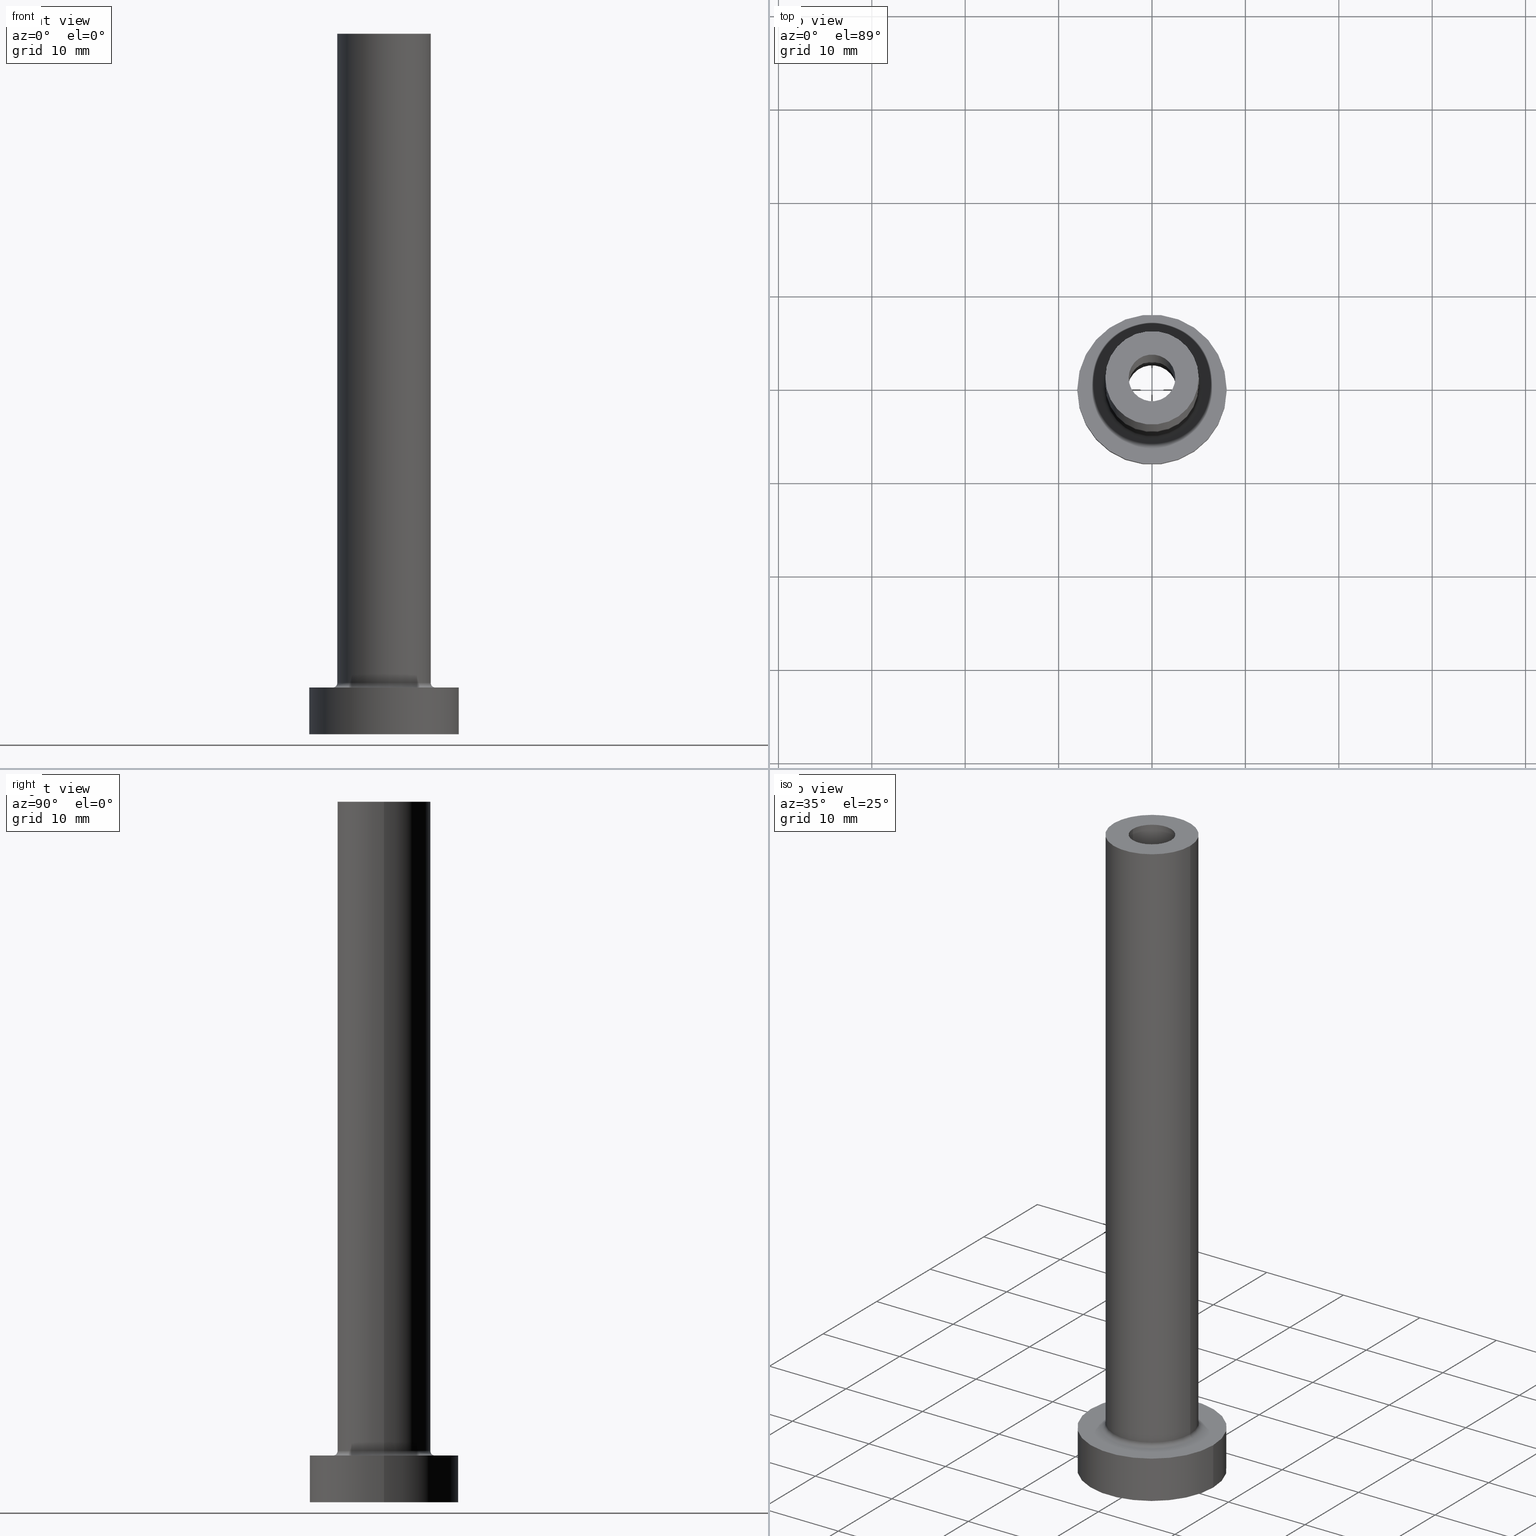
[diagram: canonical four-view strip — front | top / right | iso, engineering-drawing reading convention]
A machine part, canonical four-view strip (front | top / right | iso — engineering-drawing reading convention). The complete STEP part file that produces these views, byte-faithful:
ISO-10303-21;
HEADER;
FILE_DESCRIPTION (( 'STEP AP203' ),
    '1' );
FILE_NAME ('a5b7.STEP',
    '2023-02-13T17:01:04',
    ( '' ),
    ( '' ),
    'SwSTEP 2.0',
    'SolidWorks 2019',
    '' );
FILE_SCHEMA (( 'CONFIG_CONTROL_DESIGN' ));
ENDSEC;

DATA;
#1 = ORIENTED_EDGE ( 'NONE', *, *, #402, .F. ) ;
#2 = FACE_OUTER_BOUND ( 'NONE', #140, .T. ) ;
#3 = CARTESIAN_POINT ( 'NONE',  ( 0.000000000000000000, 0.000000000000000000, 5.500000000000005329 ) ) ;
#4 = EDGE_CURVE ( 'NONE', #326, #238, #412, .T. ) ;
#5 = CARTESIAN_POINT ( 'NONE',  ( 8.000000000000000000, 9.797174393178825657E-16, 0.000000000000000000 ) ) ;
#6 = AXIS2_PLACEMENT_3D ( 'NONE', #218, #280, #68 ) ;
#7 = CARTESIAN_POINT ( 'NONE',  ( 5.000000000000000000, 6.123233995736766282E-16, 75.00000000000001421 ) ) ;
#8 = DIRECTION ( 'NONE',  ( -0.000000000000000000, -0.000000000000000000, -1.000000000000000000 ) ) ;
#9 = FACE_OUTER_BOUND ( 'NONE', #166, .T. ) ;
#10 = ORIENTED_EDGE ( 'NONE', *, *, #47, .F. ) ;
#11 = CARTESIAN_POINT ( 'NONE',  ( -5.500000000000000000, 6.735557395310442023E-16, 5.500000000000005329 ) ) ;
#12 = DIRECTION ( 'NONE',  ( 1.000000000000000000, 0.000000000000000000, -0.000000000000000000 ) ) ;
#13 = EDGE_CURVE ( 'NONE', #135, #170, #177, .T. ) ;
#14 = DIRECTION ( 'NONE',  ( 0.000000000000000000, 0.000000000000000000, 1.000000000000000000 ) ) ;
#15 = FACE_OUTER_BOUND ( 'NONE', #107, .T. ) ;
#16 = DIRECTION ( 'NONE',  ( 0.000000000000000000, 0.000000000000000000, 1.000000000000000000 ) ) ;
#17 = PERSON_AND_ORGANIZATION ( #105, #408 ) ;
#18 = PERSON_AND_ORGANIZATION_ROLE ( 'creator' ) ;
#19 = FACE_BOUND ( 'NONE', #318, .T. ) ;
#20 = EDGE_CURVE ( 'NONE', #262, #96, #54, .T. ) ;
#21 = VERTEX_POINT ( 'NONE', #5 ) ;
#22 = AXIS2_PLACEMENT_3D ( 'NONE', #75, #319, #12 ) ;
#23 = DIRECTION ( 'NONE',  ( -0.000000000000000000, -0.000000000000000000, -1.000000000000000000 ) ) ;
#24 = AXIS2_PLACEMENT_3D ( 'NONE', #393, #438, #32 ) ;
#25 = APPROVAL_DATE_TIME ( #192, #233 ) ;
#26 = AXIS2_PLACEMENT_3D ( 'NONE', #372, #392, #263 ) ;
#27 = EDGE_LOOP ( 'NONE', ( #303, #420, #453, #93 ) ) ;
#28 = AXIS2_PLACEMENT_3D ( 'NONE', #260, #248, #396 ) ;
#29 = ORIENTED_EDGE ( 'NONE', *, *, #130, .F. ) ;
#30 = DIRECTION ( 'NONE',  ( 0.000000000000000000, 0.000000000000000000, -1.000000000000000000 ) ) ;
#31 = AXIS2_PLACEMENT_3D ( 'NONE', #343, #40, #347 ) ;
#32 = DIRECTION ( 'NONE',  ( 1.000000000000000000, 0.000000000000000000, 0.000000000000000000 ) ) ;
#33 = CARTESIAN_POINT ( 'NONE',  ( 0.000000000000000000, 0.000000000000000000, 75.00000000000001421 ) ) ;
#34 = EDGE_LOOP ( 'NONE', ( #425, #361 ) ) ;
#35 = DIRECTION ( 'NONE',  ( -1.000000000000000000, 0.000000000000000000, 0.000000000000000000 ) ) ;
#36 = APPROVAL ( #51, 'NEUR�EN�' ) ;
#37 = CARTESIAN_POINT ( 'NONE',  ( 0.000000000000000000, 0.000000000000000000, 5.000000000000000000 ) ) ;
#38 = EDGE_CURVE ( 'NONE', #169, #237, #203, .T. ) ;
#39 = DIRECTION ( 'NONE',  ( 0.000000000000000000, 0.000000000000000000, 1.000000000000000000 ) ) ;
#40 = DIRECTION ( 'NONE',  ( 0.000000000000000000, 0.000000000000000000, 1.000000000000000000 ) ) ;
#41 = DIRECTION ( 'NONE',  ( 1.000000000000000000, 0.000000000000000000, 0.000000000000000000 ) ) ;
#42 = AXIS2_PLACEMENT_3D ( 'NONE', #37, #8, #108 ) ;
#43 = CARTESIAN_POINT ( 'NONE',  ( -2.649999999999999911, 0.000000000000000000, 30.00000000000001421 ) ) ;
#44 = CARTESIAN_POINT ( 'NONE',  ( -2.500000000000000000, 0.000000000000000000, 75.00000000000001421 ) ) ;
#45 = DIRECTION ( 'NONE',  ( 0.000000000000000000, 0.000000000000000000, -1.000000000000000000 ) ) ;
#46 = DATE_TIME_ROLE ( 'classification_date' ) ;
#47 = EDGE_CURVE ( 'NONE', #322, #129, #133, .T. ) ;
#48 = DIRECTION ( 'NONE',  ( 0.000000000000000000, 0.000000000000000000, -1.000000000000000000 ) ) ;
#49 = CIRCLE ( 'NONE', #143, 5.500000000000000000 ) ;
#50 = AXIS2_PLACEMENT_3D ( 'NONE', #223, #16, #362 ) ;
#51 = APPROVAL_STATUS ( 'not_yet_approved' ) ;
#52 = DIRECTION ( 'NONE',  ( 1.000000000000000000, 0.000000000000000000, 0.000000000000000000 ) ) ;
#53 = ORIENTED_EDGE ( 'NONE', *, *, #402, .T. ) ;
#54 = LINE ( 'NONE', #227, #230 ) ;
#55 = AXIS2_PLACEMENT_3D ( 'NONE', #447, #217, #189 ) ;
#56 = DATE_AND_TIME ( #259, #236 ) ;
#57 = ORIENTED_EDGE ( 'NONE', *, *, #220, .T. ) ;
#58 = ORIENTED_EDGE ( 'NONE', *, *, #20, .F. ) ;
#59 = ORIENTED_EDGE ( 'NONE', *, *, #38, .T. ) ;
#60 = AXIS2_PLACEMENT_3D ( 'NONE', #158, #410, #113 ) ;
#61 = ORIENTED_EDGE ( 'NONE', *, *, #142, .F. ) ;
#62 = AXIS2_PLACEMENT_3D ( 'NONE', #73, #178, #312 ) ;
#63 = ORIENTED_EDGE ( 'NONE', *, *, #321, .T. ) ;
#64 = ADVANCED_FACE ( 'NONE', ( #277 ), #127, .F. ) ;
#65 = VERTEX_POINT ( 'NONE', #163 ) ;
#66 = LINE ( 'NONE', #7, #265 ) ;
#67 = PRODUCT_DEFINITION_SHAPE ( 'NONE', 'NONE',  #211 ) ;
#68 = DIRECTION ( 'NONE',  ( 1.000000000000000000, 0.000000000000000000, -0.000000000000000000 ) ) ;
#69 = DIRECTION ( 'NONE',  ( 0.000000000000000000, 0.000000000000000000, 1.000000000000000000 ) ) ;
#70 = DIRECTION ( 'NONE',  ( 1.000000000000000000, 0.000000000000000000, -0.000000000000000000 ) ) ;
#71 = FACE_OUTER_BOUND ( 'NONE', #450, .T. ) ;
#72 = DIRECTION ( 'NONE',  ( 1.000000000000000000, 0.000000000000000000, 0.000000000000000000 ) ) ;
#73 = CARTESIAN_POINT ( 'NONE',  ( 0.000000000000000000, 0.000000000000000000, 75.00000000000001421 ) ) ;
#74 = DIRECTION ( 'NONE',  ( 1.000000000000000000, 0.000000000000000000, 0.000000000000000000 ) ) ;
#75 = CARTESIAN_POINT ( 'NONE',  ( 0.000000000000000000, 0.000000000000000000, 30.00000000000001421 ) ) ;
#76 = CIRCLE ( 'NONE', #28, 2.500000000000000000 ) ;
#77 = DIRECTION ( 'NONE',  ( 0.000000000000000000, 0.000000000000000000, -1.000000000000000000 ) ) ;
#78 = CIRCLE ( 'NONE', #458, 8.000000000000000000 ) ;
#79 = CARTESIAN_POINT ( 'NONE',  ( 0.000000000000000000, 0.000000000000000000, 37.49533188057742450 ) ) ;
#80 = DIRECTION ( 'NONE',  ( 1.000000000000000000, 0.000000000000000000, 0.000000000000000000 ) ) ;
#81 = APPLICATION_PROTOCOL_DEFINITION ( 'international standard', 'config_control_design', 1994, #382 ) ;
#82 = CARTESIAN_POINT ( 'NONE',  ( 2.500000000000000000, 3.061616997868382648E-16, 30.00000000000001421 ) ) ;
#83 = CARTESIAN_POINT ( 'NONE',  ( 0.000000000000000000, 0.000000000000000000, 0.000000000000000000 ) ) ;
#84 = CIRCLE ( 'NONE', #339, 5.000000000000000000 ) ;
#85 = APPLICATION_CONTEXT ( 'configuration controlled 3d designs of mechanical parts and assemblies' ) ;
#86 = TOROIDAL_SURFACE ( 'NONE', #215, 5.500000000000000000, 0.5000000000000000000 ) ;
#87 = SECURITY_CLASSIFICATION_LEVEL ( 'unclassified' ) ;
#88 = ORIENTED_EDGE ( 'NONE', *, *, #199, .F. ) ;
#89 = DIRECTION ( 'NONE',  ( -0.000000000000000000, -0.000000000000000000, -1.000000000000000000 ) ) ;
#90 = PERSON_AND_ORGANIZATION_ROLE ( 'design_supplier' ) ;
#91 = ORIENTED_EDGE ( 'NONE', *, *, #100, .T. ) ;
#92 = EDGE_CURVE ( 'NONE', #125, #326, #405, .T. ) ;
#93 = ORIENTED_EDGE ( 'NONE', *, *, #220, .F. ) ;
#94 = APPROVAL_PERSON_ORGANIZATION ( #188, #341, #221 ) ;
#95 =( GEOMETRIC_REPRESENTATION_CONTEXT ( 3 ) GLOBAL_UNCERTAINTY_ASSIGNED_CONTEXT ( ( #424 ) ) GLOBAL_UNIT_ASSIGNED_CONTEXT ( ( #275, #109, #317 ) ) REPRESENTATION_CONTEXT ( 'NONE', 'WORKASPACE' ) );
#96 = VERTEX_POINT ( 'NONE', #250 ) ;
#97 = ORIENTED_EDGE ( 'NONE', *, *, #142, .T. ) ;
#98 = PLANE ( 'NONE',  #301 ) ;
#99 = ORIENTED_EDGE ( 'NONE', *, *, #226, .T. ) ;
#100 = EDGE_CURVE ( 'NONE', #170, #135, #49, .T. ) ;
#101 = CIRCLE ( 'NONE', #204, 8.000000000000000000 ) ;
#102 = AXIS2_PLACEMENT_3D ( 'NONE', #283, #239, #70 ) ;
#103 = ORIENTED_EDGE ( 'NONE', *, *, #459, .F. ) ;
#104 = FACE_OUTER_BOUND ( 'NONE', #340, .T. ) ;
#105 = PERSON ( 'NEUR�EN�', 'NEUR�EN�', 'NEUR�EN�', ('NEUR�EN�'), ('NEUR�EN�'), ('NEUR�EN�') ) ;
#106 = CC_DESIGN_DATE_AND_TIME_ASSIGNMENT ( #331, #444, ( #211 ) ) ;
#107 = EDGE_LOOP ( 'NONE', ( #191, #198, #300, #336 ) ) ;
#108 = DIRECTION ( 'NONE',  ( -1.000000000000000000, 0.000000000000000000, 0.000000000000000000 ) ) ;
#109 =( NAMED_UNIT ( * ) PLANE_ANGLE_UNIT ( ) SI_UNIT ( $, .RADIAN. ) );
#110 = CARTESIAN_POINT ( 'NONE',  ( -8.000000000000000000, 0.000000000000000000, 5.000000000000000000 ) ) ;
#111 = ORIENTED_EDGE ( 'NONE', *, *, #299, .T. ) ;
#112 = FACE_OUTER_BOUND ( 'NONE', #222, .T. ) ;
#113 = DIRECTION ( 'NONE',  ( -1.000000000000000000, 0.000000000000000000, 0.000000000000000000 ) ) ;
#114 = DIRECTION ( 'NONE',  ( -0.000000000000000000, -0.000000000000000000, -1.000000000000000000 ) ) ;
#115 = CARTESIAN_POINT ( 'NONE',  ( 0.000000000000000000, 0.000000000000000000, 37.49533188057742450 ) ) ;
#116 = DIRECTION ( 'NONE',  ( 1.000000000000000000, 0.000000000000000000, 0.000000000000000000 ) ) ;
#117 = SHAPE_DEFINITION_REPRESENTATION ( #67, #286 ) ;
#118 = ORIENTED_EDGE ( 'NONE', *, *, #226, .F. ) ;
#119 = DIRECTION ( 'NONE',  ( 1.000000000000000000, 0.000000000000000000, 0.000000000000000000 ) ) ;
#120 = PERSON_AND_ORGANIZATION ( #105, #408 ) ;
#121 = DIRECTION ( 'NONE',  ( -1.000000000000000000, 0.000000000000000000, 0.000000000000000000 ) ) ;
#122 = CC_DESIGN_PERSON_AND_ORGANIZATION_ASSIGNMENT ( #409, #164, ( #200 ) ) ;
#123 = EDGE_CURVE ( 'NONE', #237, #169, #427, .T. ) ;
#124 = COORDINATED_UNIVERSAL_TIME_OFFSET ( 1, 0, .AHEAD. ) ;
#125 = VERTEX_POINT ( 'NONE', #176 ) ;
#126 = CIRCLE ( 'NONE', #62, 5.000000000000000000 ) ;
#127 = CYLINDRICAL_SURFACE ( 'NONE', #60, 2.500000000000000000 ) ;
#128 = APPROVAL_DATE_TIME ( #257, #36 ) ;
#129 = VERTEX_POINT ( 'NONE', #148 ) ;
#130 = EDGE_CURVE ( 'NONE', #238, #400, #84, .T. ) ;
#131 = DIRECTION ( 'NONE',  ( -0.000000000000000000, -0.000000000000000000, -1.000000000000000000 ) ) ;
#132 = VERTEX_POINT ( 'NONE', #43 ) ;
#133 = CIRCLE ( 'NONE', #55, 2.500000000000000000 ) ;
#134 = VECTOR ( 'NONE', #30, 1000.000000000000000 ) ;
#135 = VERTEX_POINT ( 'NONE', #181 ) ;
#136 = EDGE_CURVE ( 'NONE', #129, #322, #235, .T. ) ;
#137 = CC_DESIGN_APPROVAL ( #36, ( #211 ) ) ;
#138 = ORIENTED_EDGE ( 'NONE', *, *, #272, .T. ) ;
#139 = CC_DESIGN_PERSON_AND_ORGANIZATION_ASSIGNMENT ( #120, #290, ( #398 ) ) ;
#140 = EDGE_LOOP ( 'NONE', ( #99, #195 ) ) ;
#141 = DIRECTION ( 'NONE',  ( -1.000000000000000000, 1.224646799147351482E-16, 0.000000000000000000 ) ) ;
#142 = EDGE_CURVE ( 'NONE', #417, #65, #76, .T. ) ;
#143 = AXIS2_PLACEMENT_3D ( 'NONE', #451, #131, #116 ) ;
#144 = LINE ( 'NONE', #213, #443 ) ;
#145 = DIRECTION ( 'NONE',  ( 0.000000000000000000, 0.000000000000000000, 1.000000000000000000 ) ) ;
#146 = DESIGN_CONTEXT ( 'detailed design', #382, 'design' ) ;
#147 = VECTOR ( 'NONE', #48, 1000.000000000000000 ) ;
#148 = CARTESIAN_POINT ( 'NONE',  ( -2.500000000000000000, 0.000000000000000000, 30.00000000000001421 ) ) ;
#149 = PLANE ( 'NONE',  #6 ) ;
#150 = CYLINDRICAL_SURFACE ( 'NONE', #313, 5.000000000000000000 ) ;
#151 = CC_DESIGN_PERSON_AND_ORGANIZATION_ASSIGNMENT ( #335, #90, ( #244 ) ) ;
#152 = PLANE ( 'NONE',  #22 ) ;
#153 = FACE_OUTER_BOUND ( 'NONE', #348, .T. ) ;
#154 = FACE_BOUND ( 'NONE', #34, .T. ) ;
#155 = LINE ( 'NONE', #359, #366 ) ;
#156 = PERSON_AND_ORGANIZATION_ROLE ( 'creator' ) ;
#157 = APPROVAL_STATUS ( 'not_yet_approved' ) ;
#158 = CARTESIAN_POINT ( 'NONE',  ( 0.000000000000000000, 0.000000000000000000, 75.00000000000001421 ) ) ;
#159 = ADVANCED_FACE ( 'NONE', ( #316, #9 ), #152, .F. ) ;
#160 = APPROVAL_ROLE ( '' ) ;
#161 = AXIS2_PLACEMENT_3D ( 'NONE', #433, #39, #80 ) ;
#162 = APPROVAL_PERSON_ORGANIZATION ( #368, #36, #289 ) ;
#163 = CARTESIAN_POINT ( 'NONE',  ( 2.500000000000000000, 3.061616997868382648E-16, 75.00000000000001421 ) ) ;
#164 = PERSON_AND_ORGANIZATION_ROLE ( 'design_owner' ) ;
#165 = DIRECTION ( 'NONE',  ( 0.000000000000000000, 0.000000000000000000, 1.000000000000000000 ) ) ;
#166 = EDGE_LOOP ( 'NONE', ( #273, #370 ) ) ;
#167 = ADVANCED_FACE ( 'NONE', ( #19, #153 ), #98, .T. ) ;
#168 = VERTEX_POINT ( 'NONE', #355 ) ;
#169 = VERTEX_POINT ( 'NONE', #202 ) ;
#170 = VERTEX_POINT ( 'NONE', #247 ) ;
#171 = CIRCLE ( 'NONE', #232, 0.5000000000000004441 ) ;
#172 = DIRECTION ( 'NONE',  ( 0.000000000000000000, 0.000000000000000000, 1.000000000000000000 ) ) ;
#173 = ADVANCED_FACE ( 'NONE', ( #208 ), #150, .T. ) ;
#174 = EDGE_LOOP ( 'NONE', ( #97, #63, #411, #103 ) ) ;
#175 = FACE_BOUND ( 'NONE', #266, .T. ) ;
#176 = CARTESIAN_POINT ( 'NONE',  ( 5.000000000000000000, 6.123233995736766282E-16, 75.00000000000001421 ) ) ;
#177 = CIRCLE ( 'NONE', #385, 5.500000000000000000 ) ;
#178 = DIRECTION ( 'NONE',  ( 0.000000000000000000, 0.000000000000000000, 1.000000000000000000 ) ) ;
#179 = CYLINDRICAL_SURFACE ( 'NONE', #388, 2.649999999999999911 ) ;
#180 = ADVANCED_FACE ( 'NONE', ( #104 ), #240, .T. ) ;
#181 = CARTESIAN_POINT ( 'NONE',  ( -5.500000000000000000, 6.735557395310442023E-16, 5.000000000000002665 ) ) ;
#182 = ADVANCED_FACE ( 'NONE', ( #428 ), #395, .T. ) ;
#183 = DIRECTION ( 'NONE',  ( -0.000000000000000000, -0.000000000000000000, -1.000000000000000000 ) ) ;
#184 = ORIENTED_EDGE ( 'NONE', *, *, #415, .T. ) ;
#185 = AXIS2_PLACEMENT_3D ( 'NONE', #330, #296, #212 ) ;
#186 = DIRECTION ( 'NONE',  ( 0.000000000000000000, 0.000000000000000000, -1.000000000000000000 ) ) ;
#187 = CARTESIAN_POINT ( 'NONE',  ( 0.000000000000000000, 0.000000000000000000, 0.000000000000000000 ) ) ;
#188 = PERSON_AND_ORGANIZATION ( #105, #408 ) ;
#189 = DIRECTION ( 'NONE',  ( 1.000000000000000000, 0.000000000000000000, 0.000000000000000000 ) ) ;
#190 = COORDINATED_UNIVERSAL_TIME_OFFSET ( 1, 0, .AHEAD. ) ;
#191 = ORIENTED_EDGE ( 'NONE', *, *, #196, .F. ) ;
#192 = DATE_AND_TIME ( #373, #194 ) ;
#193 = ORIENTED_EDGE ( 'NONE', *, *, #47, .T. ) ;
#194 = LOCAL_TIME ( 18, 1, 4.000000000000000000, #228 ) ;
#195 = ORIENTED_EDGE ( 'NONE', *, *, #199, .T. ) ;
#196 = EDGE_CURVE ( 'NONE', #238, #135, #171, .T. ) ;
#197 = CIRCLE ( 'NONE', #292, 5.000000000000000000 ) ;
#198 = ORIENTED_EDGE ( 'NONE', *, *, #245, .F. ) ;
#199 = EDGE_CURVE ( 'NONE', #305, #262, #429, .T. ) ;
#200 = PRODUCT ( 'a5b7', 'a5b7', '', ( #254 ) ) ;
#201 = ORIENTED_EDGE ( 'NONE', *, *, #435, .F. ) ;
#202 = CARTESIAN_POINT ( 'NONE',  ( -2.649999999999999911, 0.000000000000000000, 0.000000000000000000 ) ) ;
#203 = CIRCLE ( 'NONE', #363, 2.649999999999999911 ) ;
#204 = AXIS2_PLACEMENT_3D ( 'NONE', #83, #323, #281 ) ;
#205 = DIRECTION ( 'NONE',  ( -0.000000000000000000, -0.000000000000000000, -1.000000000000000000 ) ) ;
#206 = LOCAL_TIME ( 18, 1, 4.000000000000000000, #190 ) ;
#207 = DIRECTION ( 'NONE',  ( 1.000000000000000000, 0.000000000000000000, 0.000000000000000000 ) ) ;
#208 = FACE_OUTER_BOUND ( 'NONE', #354, .T. ) ;
#209 = CARTESIAN_POINT ( 'NONE',  ( 0.000000000000000000, 0.000000000000000000, 5.500000000000005329 ) ) ;
#210 = CYLINDRICAL_SURFACE ( 'NONE', #287, 5.000000000000000000 ) ;
#211 = PRODUCT_DEFINITION ( 'NEZN�M�', '', #244, #146 ) ;
#212 = DIRECTION ( 'NONE',  ( 1.000000000000000000, 0.000000000000000000, 0.000000000000000000 ) ) ;
#213 = CARTESIAN_POINT ( 'NONE',  ( -2.500000000000000000, 0.000000000000000000, 75.00000000000001421 ) ) ;
#214 = DIRECTION ( 'NONE',  ( 1.224646799147353207E-16, 1.000000000000000000, -0.000000000000000000 ) ) ;
#215 = AXIS2_PLACEMENT_3D ( 'NONE', #346, #384, #391 ) ;
#216 = CC_DESIGN_APPROVAL ( #233, ( #398 ) ) ;
#217 = DIRECTION ( 'NONE',  ( 0.000000000000000000, 0.000000000000000000, 1.000000000000000000 ) ) ;
#218 = CARTESIAN_POINT ( 'NONE',  ( 0.000000000000000000, 0.000000000000000000, 5.000000000000000000 ) ) ;
#219 = DIRECTION ( 'NONE',  ( 0.000000000000000000, 0.000000000000000000, -1.000000000000000000 ) ) ;
#220 = EDGE_CURVE ( 'NONE', #132, #169, #436, .T. ) ;
#221 = APPROVAL_ROLE ( '' ) ;
#222 = EDGE_LOOP ( 'NONE', ( #460, #291 ) ) ;
#223 = CARTESIAN_POINT ( 'NONE',  ( 0.000000000000000000, 0.000000000000000000, 30.00000000000001421 ) ) ;
#224 = CIRCLE ( 'NONE', #276, 0.5000000000000004441 ) ;
#225 = APPROVAL_STATUS ( 'not_yet_approved' ) ;
#226 = EDGE_CURVE ( 'NONE', #262, #305, #446, .T. ) ;
#227 = CARTESIAN_POINT ( 'NONE',  ( -8.000000000000000000, 0.000000000000000000, 5.000000000000000000 ) ) ;
#228 = COORDINATED_UNIVERSAL_TIME_OFFSET ( 1, 0, .AHEAD. ) ;
#229 = EDGE_LOOP ( 'NONE', ( #29, #264, #403, #268 ) ) ;
#230 = VECTOR ( 'NONE', #23, 1000.000000000000000 ) ;
#231 = AXIS2_PLACEMENT_3D ( 'NONE', #115, #45, #121 ) ;
#232 = AXIS2_PLACEMENT_3D ( 'NONE', #11, #214, #141 ) ;
#233 = APPROVAL ( #225, 'NEUR�EN�' ) ;
#234 = ORIENTED_EDGE ( 'NONE', *, *, #415, .F. ) ;
#235 = CIRCLE ( 'NONE', #161, 2.500000000000000000 ) ;
#236 = LOCAL_TIME ( 18, 1, 4.000000000000000000, #124 ) ;
#237 = VERTEX_POINT ( 'NONE', #310 ) ;
#238 = VERTEX_POINT ( 'NONE', #314 ) ;
#239 = DIRECTION ( 'NONE',  ( 0.000000000000000000, 0.000000000000000000, 1.000000000000000000 ) ) ;
#240 = CYLINDRICAL_SURFACE ( 'NONE', #42, 8.000000000000000000 ) ;
#241 = ORIENTED_EDGE ( 'NONE', *, *, #245, .T. ) ;
#242 = AXIS2_PLACEMENT_3D ( 'NONE', #397, #442, #119 ) ;
#243 = DIRECTION ( 'NONE',  ( -0.000000000000000000, -0.000000000000000000, -1.000000000000000000 ) ) ;
#244 = PRODUCT_DEFINITION_FORMATION_WITH_SPECIFIED_SOURCE ( 'LIBOVOLN�', '', #200, .NOT_KNOWN. ) ;
#245 = EDGE_CURVE ( 'NONE', #400, #238, #197, .T. ) ;
#246 = FACE_OUTER_BOUND ( 'NONE', #302, .T. ) ;
#247 = CARTESIAN_POINT ( 'NONE',  ( 5.500000000000000000, 0.000000000000000000, 5.000000000000002665 ) ) ;
#248 = DIRECTION ( 'NONE',  ( 0.000000000000000000, 0.000000000000000000, 1.000000000000000000 ) ) ;
#249 = PLANE ( 'NONE',  #102 ) ;
#250 = CARTESIAN_POINT ( 'NONE',  ( -8.000000000000000000, 0.000000000000000000, 0.000000000000000000 ) ) ;
#251 = CLOSED_SHELL ( 'NONE', ( #64, #306, #371, #455, #182, #180, #377, #432, #173, #167, #315, #269, #159, #413 ) ) ;
#252 = DIRECTION ( 'NONE',  ( 0.000000000000000000, -1.000000000000000000, 0.000000000000000000 ) ) ;
#253 = CARTESIAN_POINT ( 'NONE',  ( 8.000000000000000000, 9.797174393178825657E-16, 5.000000000000000000 ) ) ;
#254 = MECHANICAL_CONTEXT ( 'NONE', #85, 'mechanical' ) ;
#255 = CARTESIAN_POINT ( 'NONE',  ( 2.649999999999999911, 3.245314017740485469E-16, 37.49533188057742450 ) ) ;
#256 = FACE_OUTER_BOUND ( 'NONE', #27, .T. ) ;
#257 = DATE_AND_TIME ( #329, #334 ) ;
#258 = AXIS2_PLACEMENT_3D ( 'NONE', #434, #14, #207 ) ;
#259 = CALENDAR_DATE ( 2023, 13, 2 ) ;
#260 = CARTESIAN_POINT ( 'NONE',  ( 0.000000000000000000, 0.000000000000000000, 75.00000000000001421 ) ) ;
#261 = COORDINATED_UNIVERSAL_TIME_OFFSET ( 1, 0, .AHEAD. ) ;
#262 = VERTEX_POINT ( 'NONE', #110 ) ;
#263 = DIRECTION ( 'NONE',  ( 1.000000000000000000, 0.000000000000000000, 0.000000000000000000 ) ) ;
#264 = ORIENTED_EDGE ( 'NONE', *, *, #196, .T. ) ;
#265 = VECTOR ( 'NONE', #278, 1000.000000000000000 ) ;
#266 = EDGE_LOOP ( 'NONE', ( #91, #376 ) ) ;
#267 = EDGE_LOOP ( 'NONE', ( #452, #184, #241, #295 ) ) ;
#268 = ORIENTED_EDGE ( 'NONE', *, *, #364, .F. ) ;
#269 = ADVANCED_FACE ( 'NONE', ( #71 ), #179, .F. ) ;
#270 = CIRCLE ( 'NONE', #258, 2.649999999999999911 ) ;
#271 = ORIENTED_EDGE ( 'NONE', *, *, #459, .T. ) ;
#272 = EDGE_CURVE ( 'NONE', #305, #21, #155, .T. ) ;
#273 = ORIENTED_EDGE ( 'NONE', *, *, #342, .F. ) ;
#274 = FACE_OUTER_BOUND ( 'NONE', #267, .T. ) ;
#275 =( LENGTH_UNIT ( ) NAMED_UNIT ( * ) SI_UNIT ( .MILLI., .METRE. ) );
#276 = AXIS2_PLACEMENT_3D ( 'NONE', #327, #252, #77 ) ;
#277 = FACE_OUTER_BOUND ( 'NONE', #174, .T. ) ;
#278 = DIRECTION ( 'NONE',  ( -0.000000000000000000, -0.000000000000000000, -1.000000000000000000 ) ) ;
#279 = PRODUCT_RELATED_PRODUCT_CATEGORY ( 'detail', '', ( #200 ) ) ;
#280 = DIRECTION ( 'NONE',  ( 0.000000000000000000, 0.000000000000000000, 1.000000000000000000 ) ) ;
#281 = DIRECTION ( 'NONE',  ( 1.000000000000000000, 0.000000000000000000, 0.000000000000000000 ) ) ;
#282 = CARTESIAN_POINT ( 'NONE',  ( 0.000000000000000000, 0.000000000000000000, 5.000000000000000000 ) ) ;
#283 = CARTESIAN_POINT ( 'NONE',  ( 0.000000000000000000, 0.000000000000000000, 0.000000000000000000 ) ) ;
#284 = LINE ( 'NONE', #401, #378 ) ;
#285 = TOROIDAL_SURFACE ( 'NONE', #242, 5.500000000000000000, 0.5000000000000000000 ) ;
#286 = ADVANCED_BREP_SHAPE_REPRESENTATION ( 'a5b7', ( #456, #380 ), #95 ) ;
#287 = AXIS2_PLACEMENT_3D ( 'NONE', #309, #114, #461 ) ;
#288 = CARTESIAN_POINT ( 'NONE',  ( -5.000000000000000000, 0.000000000000000000, 75.00000000000001421 ) ) ;
#289 = APPROVAL_ROLE ( '' ) ;
#290 = PERSON_AND_ORGANIZATION_ROLE ( 'classification_officer' ) ;
#291 = ORIENTED_EDGE ( 'NONE', *, *, #448, .F. ) ;
#292 = AXIS2_PLACEMENT_3D ( 'NONE', #3, #145, #431 ) ;
#293 = PERSON_AND_ORGANIZATION ( #105, #408 ) ;
#294 = EDGE_CURVE ( 'NONE', #168, #237, #445, .T. ) ;
#295 = ORIENTED_EDGE ( 'NONE', *, *, #4, .F. ) ;
#296 = DIRECTION ( 'NONE',  ( 0.000000000000000000, 0.000000000000000000, 1.000000000000000000 ) ) ;
#297 = DATE_AND_TIME ( #328, #367 ) ;
#298 = ORIENTED_EDGE ( 'NONE', *, *, #321, .F. ) ;
#299 = EDGE_CURVE ( 'NONE', #96, #21, #101, .T. ) ;
#300 = ORIENTED_EDGE ( 'NONE', *, *, #364, .T. ) ;
#301 = AXIS2_PLACEMENT_3D ( 'NONE', #418, #165, #381 ) ;
#302 = EDGE_LOOP ( 'NONE', ( #298, #345, #271, #10 ) ) ;
#303 = ORIENTED_EDGE ( 'NONE', *, *, #342, .T. ) ;
#304 = ORIENTED_EDGE ( 'NONE', *, *, #448, .T. ) ;
#305 = VERTEX_POINT ( 'NONE', #253 ) ;
#306 = ADVANCED_FACE ( 'NONE', ( #256 ), #439, .F. ) ;
#307 = DIRECTION ( 'NONE',  ( 1.000000000000000000, 0.000000000000000000, 0.000000000000000000 ) ) ;
#308 = CC_DESIGN_DATE_AND_TIME_ASSIGNMENT ( #56, #46, ( #398 ) ) ;
#309 = CARTESIAN_POINT ( 'NONE',  ( 0.000000000000000000, 0.000000000000000000, 75.00000000000001421 ) ) ;
#310 = CARTESIAN_POINT ( 'NONE',  ( 2.649999999999999911, 3.245314017740485469E-16, 0.000000000000000000 ) ) ;
#311 = CARTESIAN_POINT ( 'NONE',  ( -5.000000000000000000, 0.000000000000000000, 75.00000000000001421 ) ) ;
#312 = DIRECTION ( 'NONE',  ( 1.000000000000000000, 0.000000000000000000, 0.000000000000000000 ) ) ;
#313 = AXIS2_PLACEMENT_3D ( 'NONE', #33, #205, #352 ) ;
#314 = CARTESIAN_POINT ( 'NONE',  ( -5.000000000000000000, 0.000000000000000000, 5.500000000000005329 ) ) ;
#315 = ADVANCED_FACE ( 'NONE', ( #15 ), #285, .F. ) ;
#316 = FACE_BOUND ( 'NONE', #383, .T. ) ;
#317 =( NAMED_UNIT ( * ) SI_UNIT ( $, .STERADIAN. ) SOLID_ANGLE_UNIT ( ) );
#318 = EDGE_LOOP ( 'NONE', ( #61, #201 ) ) ;
#319 = DIRECTION ( 'NONE',  ( 0.000000000000000000, 0.000000000000000000, 1.000000000000000000 ) ) ;
#320 = CARTESIAN_POINT ( 'NONE',  ( 5.000000000000000000, 6.123233995736766282E-16, 5.500000000000005329 ) ) ;
#321 = EDGE_CURVE ( 'NONE', #65, #322, #284, .T. ) ;
#322 = VERTEX_POINT ( 'NONE', #82 ) ;
#323 = DIRECTION ( 'NONE',  ( 0.000000000000000000, 0.000000000000000000, 1.000000000000000000 ) ) ;
#324 = VECTOR ( 'NONE', #333, 1000.000000000000000 ) ;
#325 = COORDINATED_UNIVERSAL_TIME_OFFSET ( 1, 0, .AHEAD. ) ;
#326 = VERTEX_POINT ( 'NONE', #288 ) ;
#327 = CARTESIAN_POINT ( 'NONE',  ( 5.500000000000000000, 0.000000000000000000, 5.500000000000005329 ) ) ;
#328 = CALENDAR_DATE ( 2023, 13, 2 ) ;
#329 = CALENDAR_DATE ( 2023, 13, 2 ) ;
#330 = CARTESIAN_POINT ( 'NONE',  ( 0.000000000000000000, 0.000000000000000000, 75.00000000000001421 ) ) ;
#331 = DATE_AND_TIME ( #406, #206 ) ;
#332 = ORIENTED_EDGE ( 'NONE', *, *, #20, .T. ) ;
#333 = DIRECTION ( 'NONE',  ( -0.000000000000000000, -0.000000000000000000, -1.000000000000000000 ) ) ;
#334 = LOCAL_TIME ( 18, 1, 4.000000000000000000, #325 ) ;
#335 = PERSON_AND_ORGANIZATION ( #105, #408 ) ;
#336 = ORIENTED_EDGE ( 'NONE', *, *, #13, .F. ) ;
#337 = ORIENTED_EDGE ( 'NONE', *, *, #4, .T. ) ;
#338 = ORIENTED_EDGE ( 'NONE', *, *, #92, .T. ) ;
#339 = AXIS2_PLACEMENT_3D ( 'NONE', #209, #351, #72 ) ;
#340 = EDGE_LOOP ( 'NONE', ( #379, #118, #332, #111 ) ) ;
#341 = APPROVAL ( #157, 'NEUR�EN�' ) ;
#342 = EDGE_CURVE ( 'NONE', #132, #168, #419, .T. ) ;
#343 = CARTESIAN_POINT ( 'NONE',  ( 0.000000000000000000, 0.000000000000000000, 5.000000000000000000 ) ) ;
#344 = CC_DESIGN_PERSON_AND_ORGANIZATION_ASSIGNMENT ( #293, #18, ( #211 ) ) ;
#345 = ORIENTED_EDGE ( 'NONE', *, *, #435, .T. ) ;
#346 = CARTESIAN_POINT ( 'NONE',  ( 0.000000000000000000, 0.000000000000000000, 5.500000000000005329 ) ) ;
#347 = DIRECTION ( 'NONE',  ( 1.000000000000000000, 0.000000000000000000, 0.000000000000000000 ) ) ;
#348 = EDGE_LOOP ( 'NONE', ( #53, #338 ) ) ;
#349 = DIRECTION ( 'NONE',  ( 0.000000000000000000, 0.000000000000000000, -1.000000000000000000 ) ) ;
#350 = CARTESIAN_POINT ( 'NONE',  ( 0.000000000000000000, 0.000000000000000000, 5.000000000000000000 ) ) ;
#351 = DIRECTION ( 'NONE',  ( 0.000000000000000000, 0.000000000000000000, 1.000000000000000000 ) ) ;
#352 = DIRECTION ( 'NONE',  ( -1.000000000000000000, 0.000000000000000000, 0.000000000000000000 ) ) ;
#353 = CARTESIAN_POINT ( 'NONE',  ( 0.000000000000000000, 0.000000000000000000, 75.00000000000001421 ) ) ;
#354 = EDGE_LOOP ( 'NONE', ( #234, #1, #337, #457 ) ) ;
#355 = CARTESIAN_POINT ( 'NONE',  ( 2.649999999999999911, 3.245314017740485469E-16, 30.00000000000001421 ) ) ;
#356 = APPROVAL_PERSON_ORGANIZATION ( #449, #233, #160 ) ;
#357 = DIRECTION ( 'NONE',  ( -0.000000000000000000, -0.000000000000000000, -1.000000000000000000 ) ) ;
#358 = DIRECTION ( 'NONE',  ( 0.000000000000000000, 0.000000000000000000, -1.000000000000000000 ) ) ;
#359 = CARTESIAN_POINT ( 'NONE',  ( 8.000000000000000000, 9.797174393178825657E-16, 5.000000000000000000 ) ) ;
#360 = APPROVAL_DATE_TIME ( #297, #341 ) ;
#361 = ORIENTED_EDGE ( 'NONE', *, *, #123, .F. ) ;
#362 = DIRECTION ( 'NONE',  ( 1.000000000000000000, 0.000000000000000000, 0.000000000000000000 ) ) ;
#363 = AXIS2_PLACEMENT_3D ( 'NONE', #399, #89, #41 ) ;
#364 = EDGE_CURVE ( 'NONE', #400, #170, #224, .T. ) ;
#365 = DIRECTION ( 'NONE',  ( 0.000000000000000000, 0.000000000000000000, 1.000000000000000000 ) ) ;
#366 = VECTOR ( 'NONE', #183, 1000.000000000000000 ) ;
#367 = LOCAL_TIME ( 18, 1, 4.000000000000000000, #261 ) ;
#368 = PERSON_AND_ORGANIZATION ( #105, #408 ) ;
#369 = APPLICATION_PROTOCOL_DEFINITION ( 'international standard', 'config_control_design', 1994, #85 ) ;
#370 = ORIENTED_EDGE ( 'NONE', *, *, #422, .F. ) ;
#371 = ADVANCED_FACE ( 'NONE', ( #389 ), #86, .F. ) ;
#372 = CARTESIAN_POINT ( 'NONE',  ( 0.000000000000000000, 0.000000000000000000, 0.000000000000000000 ) ) ;
#373 = CALENDAR_DATE ( 2023, 13, 2 ) ;
#374 = ORIENTED_EDGE ( 'NONE', *, *, #422, .T. ) ;
#375 = CIRCLE ( 'NONE', #24, 2.500000000000000000 ) ;
#376 = ORIENTED_EDGE ( 'NONE', *, *, #13, .T. ) ;
#377 = ADVANCED_FACE ( 'NONE', ( #175, #2 ), #149, .T. ) ;
#378 = VECTOR ( 'NONE', #186, 1000.000000000000000 ) ;
#379 = ORIENTED_EDGE ( 'NONE', *, *, #272, .F. ) ;
#380 = AXIS2_PLACEMENT_3D ( 'NONE', #187, #365, #52 ) ;
#381 = DIRECTION ( 'NONE',  ( 1.000000000000000000, 0.000000000000000000, -0.000000000000000000 ) ) ;
#382 = APPLICATION_CONTEXT ( 'configuration controlled 3d designs of mechanical parts and assemblies' ) ;
#383 = EDGE_LOOP ( 'NONE', ( #387, #193 ) ) ;
#384 = DIRECTION ( 'NONE',  ( 0.000000000000000000, 0.000000000000000000, 1.000000000000000000 ) ) ;
#385 = AXIS2_PLACEMENT_3D ( 'NONE', #282, #357, #437 ) ;
#386 = DIRECTION ( 'NONE',  ( -1.000000000000000000, 0.000000000000000000, 0.000000000000000000 ) ) ;
#387 = ORIENTED_EDGE ( 'NONE', *, *, #136, .T. ) ;
#388 = AXIS2_PLACEMENT_3D ( 'NONE', #79, #219, #404 ) ;
#389 = FACE_OUTER_BOUND ( 'NONE', #229, .T. ) ;
#390 = CARTESIAN_POINT ( 'NONE',  ( -2.649999999999999911, 0.000000000000000000, 37.49533188057742450 ) ) ;
#391 = DIRECTION ( 'NONE',  ( 1.000000000000000000, 0.000000000000000000, 0.000000000000000000 ) ) ;
#392 = DIRECTION ( 'NONE',  ( -0.000000000000000000, -0.000000000000000000, -1.000000000000000000 ) ) ;
#393 = CARTESIAN_POINT ( 'NONE',  ( 0.000000000000000000, 0.000000000000000000, 75.00000000000001421 ) ) ;
#394 = CC_DESIGN_PERSON_AND_ORGANIZATION_ASSIGNMENT ( #17, #156, ( #244 ) ) ;
#395 = CYLINDRICAL_SURFACE ( 'NONE', #441, 8.000000000000000000 ) ;
#396 = DIRECTION ( 'NONE',  ( 1.000000000000000000, 0.000000000000000000, 0.000000000000000000 ) ) ;
#397 = CARTESIAN_POINT ( 'NONE',  ( 0.000000000000000000, 0.000000000000000000, 5.500000000000005329 ) ) ;
#398 = SECURITY_CLASSIFICATION ( '', '', #87 ) ;
#399 = CARTESIAN_POINT ( 'NONE',  ( 0.000000000000000000, 0.000000000000000000, 0.000000000000000000 ) ) ;
#400 = VERTEX_POINT ( 'NONE', #320 ) ;
#401 = CARTESIAN_POINT ( 'NONE',  ( 2.500000000000000000, 3.061616997868382648E-16, 75.00000000000001421 ) ) ;
#402 = EDGE_CURVE ( 'NONE', #326, #125, #126, .T. ) ;
#403 = ORIENTED_EDGE ( 'NONE', *, *, #100, .F. ) ;
#404 = DIRECTION ( 'NONE',  ( -1.000000000000000000, 0.000000000000000000, 0.000000000000000000 ) ) ;
#405 = CIRCLE ( 'NONE', #185, 5.000000000000000000 ) ;
#406 = CALENDAR_DATE ( 2023, 13, 2 ) ;
#407 = AXIS2_PLACEMENT_3D ( 'NONE', #423, #69, #74 ) ;
#408 = ORGANIZATION ( 'NEUR�EN�', 'NEUR�EN�', '' ) ;
#409 = PERSON_AND_ORGANIZATION ( #105, #408 ) ;
#410 = DIRECTION ( 'NONE',  ( 0.000000000000000000, 0.000000000000000000, -1.000000000000000000 ) ) ;
#411 = ORIENTED_EDGE ( 'NONE', *, *, #136, .F. ) ;
#412 = LINE ( 'NONE', #311, #324 ) ;
#413 = ADVANCED_FACE ( 'NONE', ( #246 ), #440, .F. ) ;
#414 = AXIS2_PLACEMENT_3D ( 'NONE', #353, #358, #35 ) ;
#415 = EDGE_CURVE ( 'NONE', #125, #400, #66, .T. ) ;
#416 = EDGE_LOOP ( 'NONE', ( #88, #138, #304, #58 ) ) ;
#417 = VERTEX_POINT ( 'NONE', #44 ) ;
#418 = CARTESIAN_POINT ( 'NONE',  ( 0.000000000000000000, 0.000000000000000000, 75.00000000000001421 ) ) ;
#419 = CIRCLE ( 'NONE', #50, 2.649999999999999911 ) ;
#420 = ORIENTED_EDGE ( 'NONE', *, *, #294, .T. ) ;
#421 = CC_DESIGN_APPROVAL ( #341, ( #244 ) ) ;
#422 = EDGE_CURVE ( 'NONE', #168, #132, #270, .T. ) ;
#423 = CARTESIAN_POINT ( 'NONE',  ( 0.000000000000000000, 0.000000000000000000, 5.000000000000000000 ) ) ;
#424 = UNCERTAINTY_MEASURE_WITH_UNIT (LENGTH_MEASURE( 1.000000000000000082E-05 ), #275, 'distance_accuracy_value', 'NONE');
#425 = ORIENTED_EDGE ( 'NONE', *, *, #38, .F. ) ;
#426 = CARTESIAN_POINT ( 'NONE',  ( 0.000000000000000000, 0.000000000000000000, 0.000000000000000000 ) ) ;
#427 = CIRCLE ( 'NONE', #26, 2.649999999999999911 ) ;
#428 = FACE_OUTER_BOUND ( 'NONE', #416, .T. ) ;
#429 = CIRCLE ( 'NONE', #31, 8.000000000000000000 ) ;
#430 = CC_DESIGN_SECURITY_CLASSIFICATION ( #398, ( #244 ) ) ;
#431 = DIRECTION ( 'NONE',  ( 1.000000000000000000, 0.000000000000000000, 0.000000000000000000 ) ) ;
#432 = ADVANCED_FACE ( 'NONE', ( #154, #112 ), #249, .F. ) ;
#433 = CARTESIAN_POINT ( 'NONE',  ( 0.000000000000000000, 0.000000000000000000, 30.00000000000001421 ) ) ;
#434 = CARTESIAN_POINT ( 'NONE',  ( 0.000000000000000000, 0.000000000000000000, 30.00000000000001421 ) ) ;
#435 = EDGE_CURVE ( 'NONE', #65, #417, #375, .T. ) ;
#436 = LINE ( 'NONE', #390, #134 ) ;
#437 = DIRECTION ( 'NONE',  ( 1.000000000000000000, 0.000000000000000000, 0.000000000000000000 ) ) ;
#438 = DIRECTION ( 'NONE',  ( 0.000000000000000000, 0.000000000000000000, 1.000000000000000000 ) ) ;
#439 = CYLINDRICAL_SURFACE ( 'NONE', #231, 2.649999999999999911 ) ;
#440 = CYLINDRICAL_SURFACE ( 'NONE', #414, 2.500000000000000000 ) ;
#441 = AXIS2_PLACEMENT_3D ( 'NONE', #350, #243, #386 ) ;
#442 = DIRECTION ( 'NONE',  ( 0.000000000000000000, 0.000000000000000000, 1.000000000000000000 ) ) ;
#443 = VECTOR ( 'NONE', #349, 1000.000000000000000 ) ;
#444 = DATE_TIME_ROLE ( 'creation_date' ) ;
#445 = LINE ( 'NONE', #255, #147 ) ;
#446 = CIRCLE ( 'NONE', #407, 8.000000000000000000 ) ;
#447 = CARTESIAN_POINT ( 'NONE',  ( 0.000000000000000000, 0.000000000000000000, 30.00000000000001421 ) ) ;
#448 = EDGE_CURVE ( 'NONE', #21, #96, #78, .T. ) ;
#449 = PERSON_AND_ORGANIZATION ( #105, #408 ) ;
#450 = EDGE_LOOP ( 'NONE', ( #454, #374, #57, #59 ) ) ;
#451 = CARTESIAN_POINT ( 'NONE',  ( 0.000000000000000000, 0.000000000000000000, 5.000000000000000000 ) ) ;
#452 = ORIENTED_EDGE ( 'NONE', *, *, #92, .F. ) ;
#453 = ORIENTED_EDGE ( 'NONE', *, *, #123, .T. ) ;
#454 = ORIENTED_EDGE ( 'NONE', *, *, #294, .F. ) ;
#455 = ADVANCED_FACE ( 'NONE', ( #274 ), #210, .T. ) ;
#456 = MANIFOLD_SOLID_BREP ( 'Odebrat vysunut�m4', #251 ) ;
#457 = ORIENTED_EDGE ( 'NONE', *, *, #130, .T. ) ;
#458 = AXIS2_PLACEMENT_3D ( 'NONE', #426, #172, #307 ) ;
#459 = EDGE_CURVE ( 'NONE', #417, #129, #144, .T. ) ;
#460 = ORIENTED_EDGE ( 'NONE', *, *, #299, .F. ) ;
#461 = DIRECTION ( 'NONE',  ( -1.000000000000000000, 0.000000000000000000, 0.000000000000000000 ) ) ;
ENDSEC;
END-ISO-10303-21;
